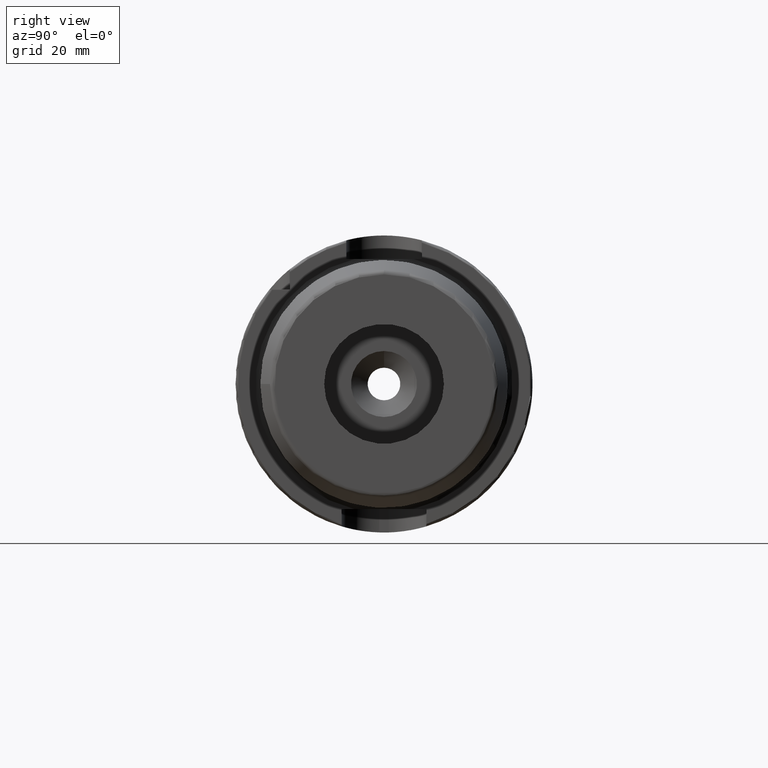
[diagram: clean part render]
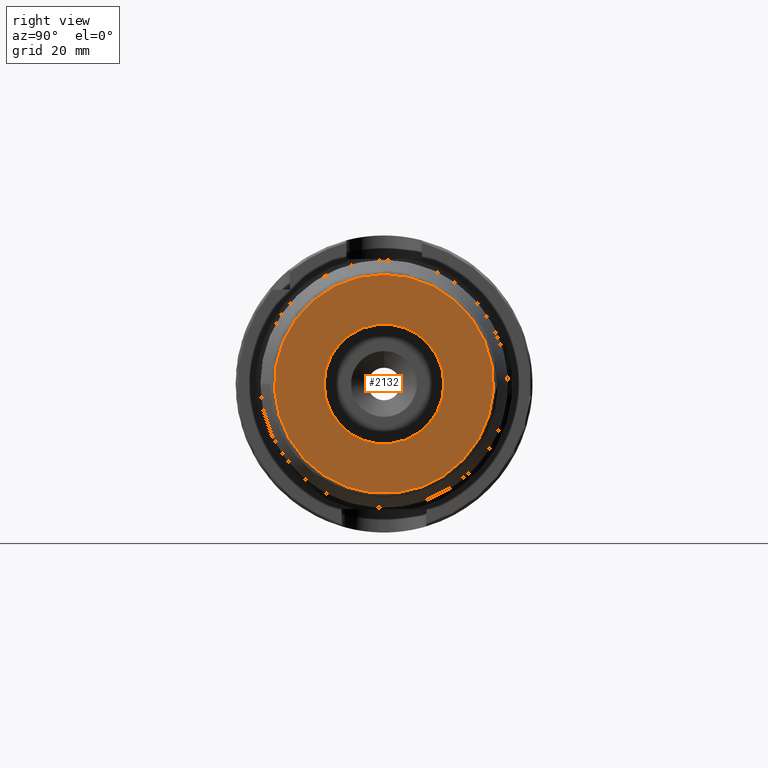
[diagram: same view with one face highlighted and labeled with its STEP entity id]
A machine part, right view. The second image highlights one B-rep face of the part: STEP entity #2132.
In plain terms, the highlighted planar face has unit normal (1, 0, 0).
Its self-contained STEP definition (entity closure, byte-faithful):
#100=FACE_BOUND('',#337,.T.);
#110=PLANE('',#2313);
#210=FACE_OUTER_BOUND('',#336,.T.);
#336=EDGE_LOOP('',(#1467));
#337=EDGE_LOOP('',(#1468));
#710=CIRCLE('',#2306,23.232673012021);
#716=CIRCLE('',#2314,12.7);
#854=VERTEX_POINT('',#3289);
#859=VERTEX_POINT('',#3303);
#1087=EDGE_CURVE('',#854,#854,#710,.T.);
#1094=EDGE_CURVE('',#859,#859,#716,.T.);
#1467=ORIENTED_EDGE('',*,*,#1087,.F.);
#1468=ORIENTED_EDGE('',*,*,#1094,.F.);
#2132=ADVANCED_FACE('',(#210,#100),#110,.T.);
#2306=AXIS2_PLACEMENT_3D('',#3290,#2631,#2632);
#2313=AXIS2_PLACEMENT_3D('',#3302,#2646,#2647);
#2314=AXIS2_PLACEMENT_3D('',#3304,#2648,#2649);
#2631=DIRECTION('center_axis',(-1.,0.,0.));
#2632=DIRECTION('ref_axis',(0.,-1.,1.83697019872103E-16));
#2646=DIRECTION('center_axis',(1.,0.,0.));
#2647=DIRECTION('ref_axis',(0.,0.,-1.));
#2648=DIRECTION('center_axis',(1.,0.,0.));
#2649=DIRECTION('ref_axis',(0.,0.,-1.));
#3289=CARTESIAN_POINT('',(95.,-2.84518186398087E-15,23.232673012021));
#3290=CARTESIAN_POINT('Origin',(95.,0.,0.));
#3302=CARTESIAN_POINT('Origin',(95.,12.7,0.));
#3303=CARTESIAN_POINT('',(95.,-12.7,-1.55530143491714E-15));
#3304=CARTESIAN_POINT('Origin',(95.,0.,0.));